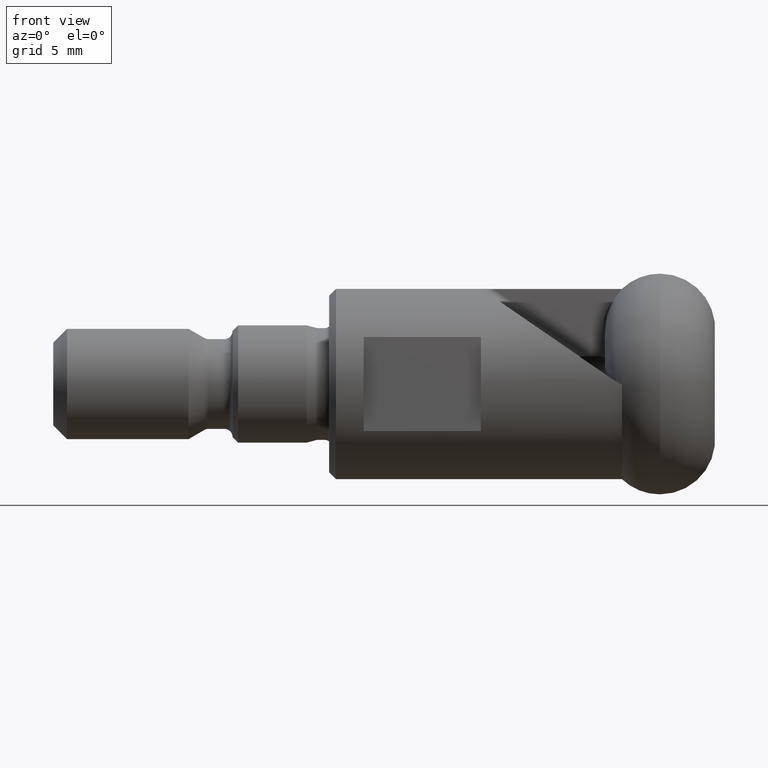
[diagram: clean part render]
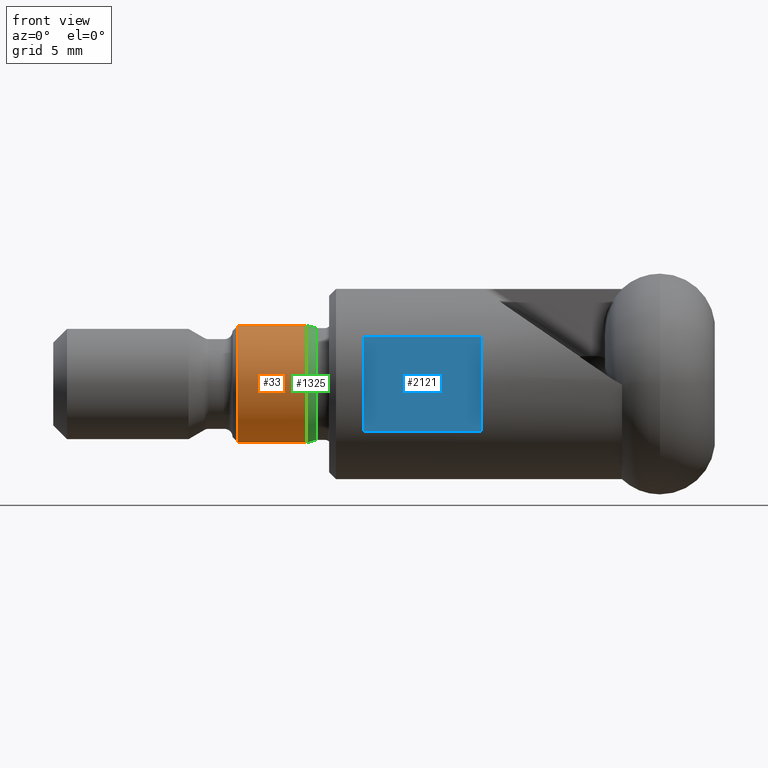
[diagram: same view with three faces highlighted in distinct colors, each labeled with its STEP entity id]
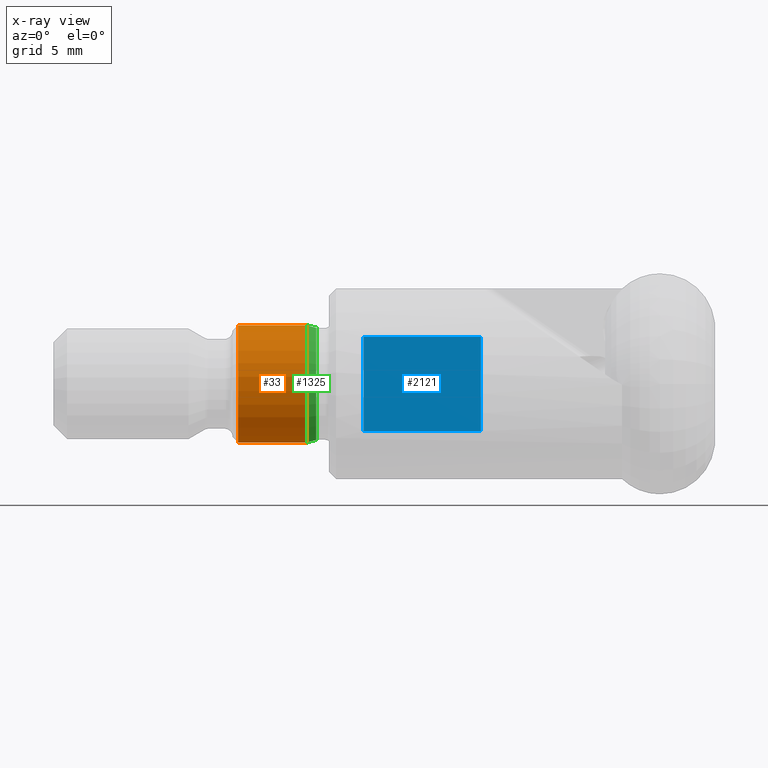
[diagram: x-ray of the same camera — body ghosted, the three highlighted faces saturated]
A machine part, front view with three faces highlighted in distinct colors.
The next image is the same camera in x-ray (body ghosted, the three faces saturated) — at least one of them is partly hidden behind the body in this view.
Their STEP definitions:

[orange] entity #33 — the highlighted cylindrical surface (partial cylindrical patch) has radius 4.25 mm, axis along (1, -0, -0).
#33 = ADVANCED_FACE ( 'NONE', ( #398 ), #1820, .T. ) ;
#180 = DIRECTION ( 'NONE',  ( 1.000000000000000000, -0.0000000000000000000, -0.0000000000000000000 ) ) ;
#199 = VERTEX_POINT ( 'NONE', #1608 ) ;
#229 = EDGE_LOOP ( 'NONE', ( #2200, #661, #1332, #2268 ) ) ;
#315 = AXIS2_PLACEMENT_3D ( 'NONE', #2452, #2235, #1825 ) ;
#398 = FACE_OUTER_BOUND ( 'NONE', #229, .T. ) ;
#661 = ORIENTED_EDGE ( 'NONE', *, *, #2123, .T. ) ;
#675 = EDGE_CURVE ( 'NONE', #1637, #1603, #1993, .T. ) ;
#1051 = CARTESIAN_POINT ( 'NONE',  ( -28.72679491924313000, 0.0000000000000000000, 0.0000000000000000000 ) ) ;
#1127 = LINE ( 'NONE', #2077, #2057 ) ;
#1149 = AXIS2_PLACEMENT_3D ( 'NONE', #1051, #1454, #1466 ) ;
#1235 = VERTEX_POINT ( 'NONE', #1582 ) ;
#1312 = DIRECTION ( 'NONE',  ( 0.0000000000000000000, 0.0000000000000000000, -1.000000000000000000 ) ) ;
#1332 = ORIENTED_EDGE ( 'NONE', *, *, #675, .T. ) ;
#1397 = CARTESIAN_POINT ( 'NONE',  ( 0.0000000000000000000, 0.0000000000000000000, -4.249999999999994700 ) ) ;
#1414 = AXIS2_PLACEMENT_3D ( 'NONE', #1736, #1507, #1312 ) ;
#1419 = VECTOR ( 'NONE', #2240, 1000.000000000000000 ) ;
#1454 = DIRECTION ( 'NONE',  ( -1.000000000000000000, 0.0000000000000000000, 0.0000000000000000000 ) ) ;
#1466 = DIRECTION ( 'NONE',  ( 0.0000000000000000000, 0.0000000000000000000, 1.000000000000000000 ) ) ;
#1507 = DIRECTION ( 'NONE',  ( 1.000000000000000000, -0.0000000000000000000, -0.0000000000000000000 ) ) ;
#1538 = CARTESIAN_POINT ( 'NONE',  ( -28.72679491924313000, 5.204748896376244800E-016, -4.249999999999994700 ) ) ;
#1582 = CARTESIAN_POINT ( 'NONE',  ( -28.72679491924313000, 0.0000000000000000000, 4.249999999999994700 ) ) ;
#1603 = VERTEX_POINT ( 'NONE', #1538 ) ;
#1608 = CARTESIAN_POINT ( 'NONE',  ( -33.70000000000001000, 5.204748896376249700E-016, 4.249999999999998200 ) ) ;
#1637 = VERTEX_POINT ( 'NONE', #2622 ) ;
#1736 = CARTESIAN_POINT ( 'NONE',  ( 0.0000000000000000000, 0.0000000000000000000, 0.0000000000000000000 ) ) ;
#1820 = CYLINDRICAL_SURFACE ( 'NONE', #1414, 4.249999999999994700 ) ;
#1825 = DIRECTION ( 'NONE',  ( 0.0000000000000000000, 0.0000000000000000000, -1.000000000000000000 ) ) ;
#1873 = CIRCLE ( 'NONE', #1149, 4.249999999999994700 ) ;
#1993 = LINE ( 'NONE', #1397, #1419 ) ;
#2057 = VECTOR ( 'NONE', #180, 1000.000000000000000 ) ;
#2077 = CARTESIAN_POINT ( 'NONE',  ( 0.0000000000000000000, 5.204748896376245800E-016, 4.249999999999994700 ) ) ;
#2123 = EDGE_CURVE ( 'NONE', #199, #1637, #2145, .T. ) ;
#2145 = CIRCLE ( 'NONE', #315, 4.249999999999994700 ) ;
#2166 = EDGE_CURVE ( 'NONE', #1603, #1235, #1873, .T. ) ;
#2200 = ORIENTED_EDGE ( 'NONE', *, *, #2686, .F. ) ;
#2235 = DIRECTION ( 'NONE',  ( 1.000000000000000000, -0.0000000000000000000, -0.0000000000000000000 ) ) ;
#2240 = DIRECTION ( 'NONE',  ( 1.000000000000000000, -0.0000000000000000000, -0.0000000000000000000 ) ) ;
#2268 = ORIENTED_EDGE ( 'NONE', *, *, #2166, .T. ) ;
#2452 = CARTESIAN_POINT ( 'NONE',  ( -33.70000000000001000, 0.0000000000000000000, 0.0000000000000000000 ) ) ;
#2622 = CARTESIAN_POINT ( 'NONE',  ( -33.70000000000001000, 0.0000000000000000000, -4.249999999999998200 ) ) ;
#2686 = EDGE_CURVE ( 'NONE', #199, #1235, #1127, .T. ) ;

[blue] entity #2121 — the highlighted planar face has unit normal (-0, 1, 0).
#156 = ORIENTED_EDGE ( 'NONE', *, *, #1655, .T. ) ;
#193 = CARTESIAN_POINT ( 'NONE',  ( 0.0000000000000000000, -6.000000000000001800, 3.407345007480161200 ) ) ;
#252 = LINE ( 'NONE', #1377, #351 ) ;
#283 = LINE ( 'NONE', #1219, #2592 ) ;
#302 = PLANE ( 'NONE',  #2639 ) ;
#321 = CARTESIAN_POINT ( 'NONE',  ( -24.60000000000000100, -6.000000000000001800, -15.00000000000000000 ) ) ;
#351 = VECTOR ( 'NONE', #2659, 1000.000000000000000 ) ;
#406 = DIRECTION ( 'NONE',  ( -0.0000000000000000000, -0.0000000000000000000, 1.000000000000000000 ) ) ;
#483 = VERTEX_POINT ( 'NONE', #1491 ) ;
#760 = LINE ( 'NONE', #193, #1837 ) ;
#1074 = ORIENTED_EDGE ( 'NONE', *, *, #1561, .F. ) ;
#1137 = CARTESIAN_POINT ( 'NONE',  ( -24.60000000000000100, -6.000000000000001800, 3.407345007480161700 ) ) ;
#1141 = CARTESIAN_POINT ( 'NONE',  ( -24.60000000000000100, -6.000000000000001800, -15.00000000000000000 ) ) ;
#1212 = VERTEX_POINT ( 'NONE', #1137 ) ;
#1219 = CARTESIAN_POINT ( 'NONE',  ( -16.10000000000000100, -6.000000000000001800, -15.00000000000000000 ) ) ;
#1285 = ORIENTED_EDGE ( 'NONE', *, *, #2209, .T. ) ;
#1356 = ORIENTED_EDGE ( 'NONE', *, *, #1735, .T. ) ;
#1377 = CARTESIAN_POINT ( 'NONE',  ( 0.0000000000000000000, -6.000000000000001800, -3.407345007480161200 ) ) ;
#1389 = EDGE_LOOP ( 'NONE', ( #1285, #1074, #156, #1356 ) ) ;
#1471 = FACE_OUTER_BOUND ( 'NONE', #1389, .T. ) ;
#1491 = CARTESIAN_POINT ( 'NONE',  ( -24.60000000000000100, -6.000000000000001800, -3.407345007480161700 ) ) ;
#1492 = CARTESIAN_POINT ( 'NONE',  ( -16.10000000000000100, -6.000000000000001800, 3.407345007480161200 ) ) ;
#1550 = DIRECTION ( 'NONE',  ( -0.0000000000000000000, -0.0000000000000000000, 1.000000000000000000 ) ) ;
#1561 = EDGE_CURVE ( 'NONE', #483, #1212, #1990, .T. ) ;
#1655 = EDGE_CURVE ( 'NONE', #483, #1755, #252, .T. ) ;
#1735 = EDGE_CURVE ( 'NONE', #1755, #2393, #283, .T. ) ;
#1755 = VERTEX_POINT ( 'NONE', #2104 ) ;
#1837 = VECTOR ( 'NONE', #2320, 1000.000000000000000 ) ;
#1912 = DIRECTION ( 'NONE',  ( 0.0000000000000000000, -0.0000000000000000000, 1.000000000000000000 ) ) ;
#1953 = VECTOR ( 'NONE', #1550, 1000.000000000000000 ) ;
#1990 = LINE ( 'NONE', #1141, #1953 ) ;
#2104 = CARTESIAN_POINT ( 'NONE',  ( -16.10000000000000100, -6.000000000000001800, -3.407345007480161200 ) ) ;
#2121 = ADVANCED_FACE ( 'NONE', ( #1471 ), #302, .F. ) ;
#2209 = EDGE_CURVE ( 'NONE', #2393, #1212, #760, .T. ) ;
#2320 = DIRECTION ( 'NONE',  ( -1.000000000000000000, 0.0000000000000000000, 0.0000000000000000000 ) ) ;
#2393 = VERTEX_POINT ( 'NONE', #1492 ) ;
#2522 = DIRECTION ( 'NONE',  ( -0.0000000000000000000, 1.000000000000000000, 0.0000000000000000000 ) ) ;
#2592 = VECTOR ( 'NONE', #406, 1000.000000000000000 ) ;
#2639 = AXIS2_PLACEMENT_3D ( 'NONE', #321, #2522, #1912 ) ;
#2659 = DIRECTION ( 'NONE',  ( 1.000000000000000000, -0.0000000000000000000, -0.0000000000000000000 ) ) ;

[green] entity #1325 — the highlighted conical surface has half-angle 15 deg.
#126 = VECTOR ( 'NONE', #178, 1000.000000000000000 ) ;
#151 = CARTESIAN_POINT ( 'NONE',  ( -28.03125137673538700, 4.976511067654241700E-016, 4.063629669484362800 ) ) ;
#178 = DIRECTION ( 'NONE',  ( -0.9659258262890684200, 0.0000000000000000000, 0.2588190451025203500 ) ) ;
#365 = DIRECTION ( 'NONE',  ( 1.000000000000000000, -0.0000000000000000000, -0.0000000000000000000 ) ) ;
#386 = DIRECTION ( 'NONE',  ( 0.0000000000000000000, 0.0000000000000000000, 1.000000000000000000 ) ) ;
#445 = AXIS2_PLACEMENT_3D ( 'NONE', #999, #365, #975 ) ;
#465 = CONICAL_SURFACE ( 'NONE', #1692, 4.063629669484362800, 0.2617993877991490200 ) ;
#545 = FACE_OUTER_BOUND ( 'NONE', #2341, .T. ) ;
#571 = LINE ( 'NONE', #2488, #126 ) ;
#975 = DIRECTION ( 'NONE',  ( 0.0000000000000000000, 0.0000000000000000000, -1.000000000000000000 ) ) ;
#999 = CARTESIAN_POINT ( 'NONE',  ( -28.03125137673538700, 0.0000000000000000000, 0.0000000000000000000 ) ) ;
#1051 = CARTESIAN_POINT ( 'NONE',  ( -28.72679491924313000, 0.0000000000000000000, 0.0000000000000000000 ) ) ;
#1115 = ORIENTED_EDGE ( 'NONE', *, *, #2340, .F. ) ;
#1149 = AXIS2_PLACEMENT_3D ( 'NONE', #1051, #1454, #1466 ) ;
#1235 = VERTEX_POINT ( 'NONE', #1582 ) ;
#1257 = VERTEX_POINT ( 'NONE', #2034 ) ;
#1325 = ADVANCED_FACE ( 'NONE', ( #545 ), #465, .T. ) ;
#1398 = CARTESIAN_POINT ( 'NONE',  ( -28.03125137673538700, 0.0000000000000000000, 0.0000000000000000000 ) ) ;
#1454 = DIRECTION ( 'NONE',  ( -1.000000000000000000, 0.0000000000000000000, 0.0000000000000000000 ) ) ;
#1466 = DIRECTION ( 'NONE',  ( 0.0000000000000000000, 0.0000000000000000000, 1.000000000000000000 ) ) ;
#1538 = CARTESIAN_POINT ( 'NONE',  ( -28.72679491924313000, 5.204748896376244800E-016, -4.249999999999994700 ) ) ;
#1582 = CARTESIAN_POINT ( 'NONE',  ( -28.72679491924313000, 0.0000000000000000000, 4.249999999999994700 ) ) ;
#1602 = CIRCLE ( 'NONE', #445, 4.063629669484362800 ) ;
#1603 = VERTEX_POINT ( 'NONE', #1538 ) ;
#1692 = AXIS2_PLACEMENT_3D ( 'NONE', #1398, #2063, #386 ) ;
#1709 = DIRECTION ( 'NONE',  ( -0.9659258262890684200, 3.169619151431760000E-017, -0.2588190451025203500 ) ) ;
#1742 = LINE ( 'NONE', #2360, #1773 ) ;
#1773 = VECTOR ( 'NONE', #1709, 1000.000000000000000 ) ;
#1873 = CIRCLE ( 'NONE', #1149, 4.249999999999994700 ) ;
#1947 = VERTEX_POINT ( 'NONE', #151 ) ;
#2034 = CARTESIAN_POINT ( 'NONE',  ( -28.03125137673538700, 0.0000000000000000000, -4.063629669484362800 ) ) ;
#2063 = DIRECTION ( 'NONE',  ( -1.000000000000000000, 0.0000000000000000000, 0.0000000000000000000 ) ) ;
#2166 = EDGE_CURVE ( 'NONE', #1603, #1235, #1873, .T. ) ;
#2250 = ORIENTED_EDGE ( 'NONE', *, *, #2595, .F. ) ;
#2264 = EDGE_CURVE ( 'NONE', #1947, #1235, #571, .T. ) ;
#2340 = EDGE_CURVE ( 'NONE', #1257, #1603, #1742, .T. ) ;
#2341 = EDGE_LOOP ( 'NONE', ( #1115, #2250, #2671, #2612 ) ) ;
#2360 = CARTESIAN_POINT ( 'NONE',  ( -28.03125137673538700, 4.976511067654241700E-016, -4.063629669484362800 ) ) ;
#2488 = CARTESIAN_POINT ( 'NONE',  ( -28.03125137673538700, 0.0000000000000000000, 4.063629669484362800 ) ) ;
#2595 = EDGE_CURVE ( 'NONE', #1947, #1257, #1602, .T. ) ;
#2612 = ORIENTED_EDGE ( 'NONE', *, *, #2166, .F. ) ;
#2671 = ORIENTED_EDGE ( 'NONE', *, *, #2264, .T. ) ;